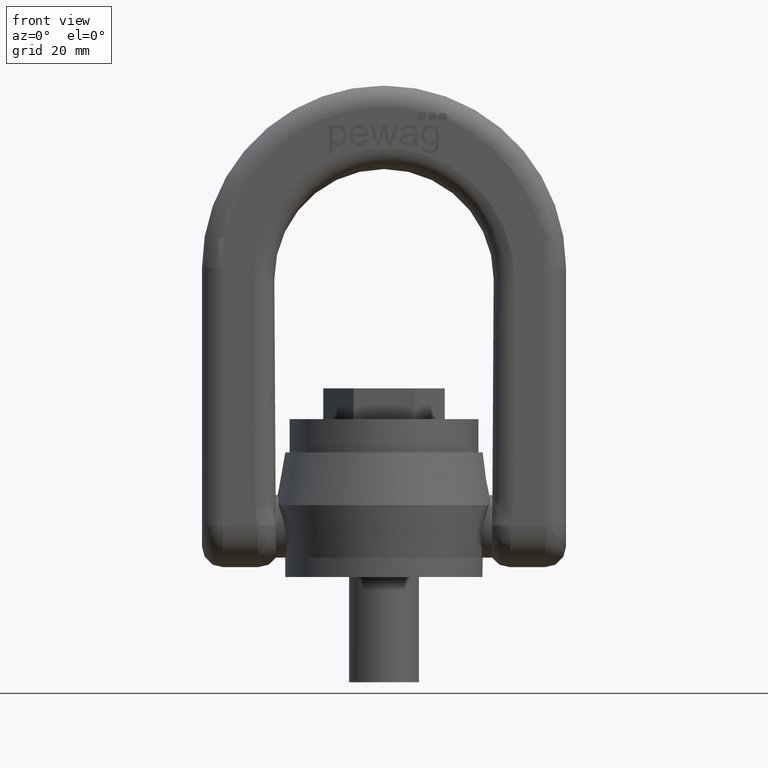
[diagram: clean part render]
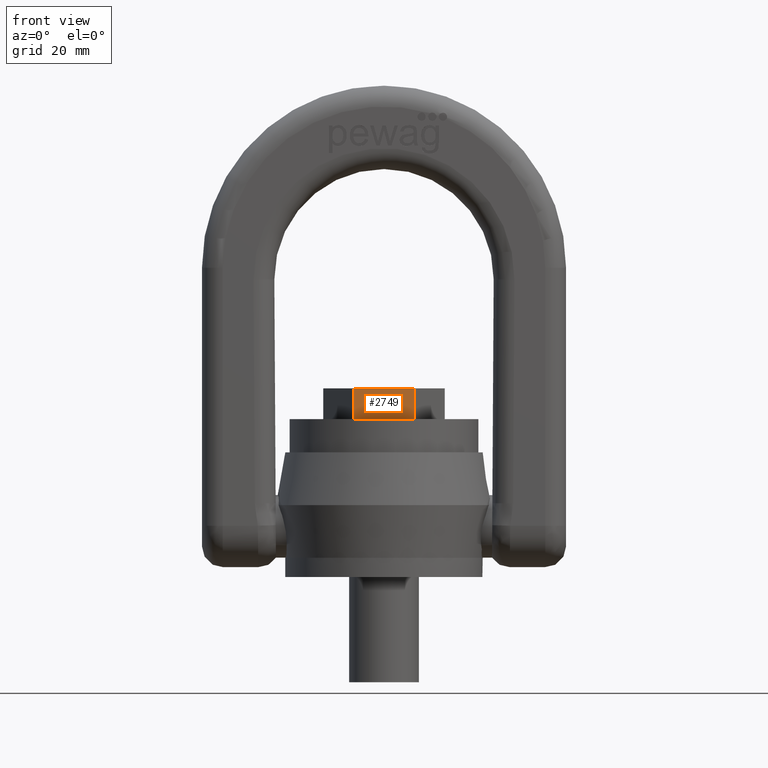
[diagram: same view with one face highlighted and labeled with its STEP entity id]
A machine part, front view. The second image highlights one B-rep face of the part: STEP entity #2749.
In plain terms, the highlighted planar face has unit normal (0, 1, 0).
Its self-contained STEP definition (entity closure, byte-faithful):
#1760=LINE('',#6630,#2042);
#1761=LINE('',#6632,#2043);
#1764=LINE('',#6638,#2046);
#1765=LINE('',#6640,#2047);
#2042=VECTOR('',#5847,1.);
#2043=VECTOR('',#5850,1.);
#2046=VECTOR('',#5855,1.);
#2047=VECTOR('',#5856,1.);
#2413=FACE_OUTER_BOUND('',#3081,.T.);
#2630=PLANE('',#5620);
#2749=ADVANCED_FACE('',(#2413),#2630,.F.);
#3081=EDGE_LOOP('',(#3365,#3366,#3367,#3368));
#3365=ORIENTED_EDGE('',*,*,#4956,.T.);
#3366=ORIENTED_EDGE('',*,*,#4960,.F.);
#3367=ORIENTED_EDGE('',*,*,#4961,.F.);
#3368=ORIENTED_EDGE('',*,*,#4957,.T.);
#4552=VERTEX_POINT('',#6621);
#4556=VERTEX_POINT('',#6629);
#4557=VERTEX_POINT('',#6633);
#4559=VERTEX_POINT('',#6639);
#4956=EDGE_CURVE('',#4552,#4556,#1760,.T.);
#4957=EDGE_CURVE('',#4557,#4552,#1761,.T.);
#4960=EDGE_CURVE('',#4559,#4556,#1764,.T.);
#4961=EDGE_CURVE('',#4557,#4559,#1765,.T.);
#5620=AXIS2_PLACEMENT_3D('',#6641,#5857,#5858);
#5847=DIRECTION('',(1.,0.,0.));
#5850=DIRECTION('',(0.,0.,-1.));
#5855=DIRECTION('',(0.,0.,-1.));
#5856=DIRECTION('',(1.,0.,0.));
#5857=DIRECTION('',(0.,1.,0.));
#5858=DIRECTION('',(0.,0.,1.));
#6621=CARTESIAN_POINT('',(-6.92820323027551,-12.,36.));
#6629=CARTESIAN_POINT('',(6.92820323027551,-12.,36.));
#6630=CARTESIAN_POINT('',(-6.92820323027551,-12.,36.));
#6632=CARTESIAN_POINT('',(-6.92820323027551,-12.,43.));
#6633=CARTESIAN_POINT('',(-6.92820323027551,-12.,43.));
#6638=CARTESIAN_POINT('',(6.92820323027551,-12.,43.));
#6639=CARTESIAN_POINT('',(6.92820323027551,-12.,43.));
#6640=CARTESIAN_POINT('',(-6.92820323027551,-12.,43.));
#6641=CARTESIAN_POINT('',(-6.92820323027551,-12.,43.));